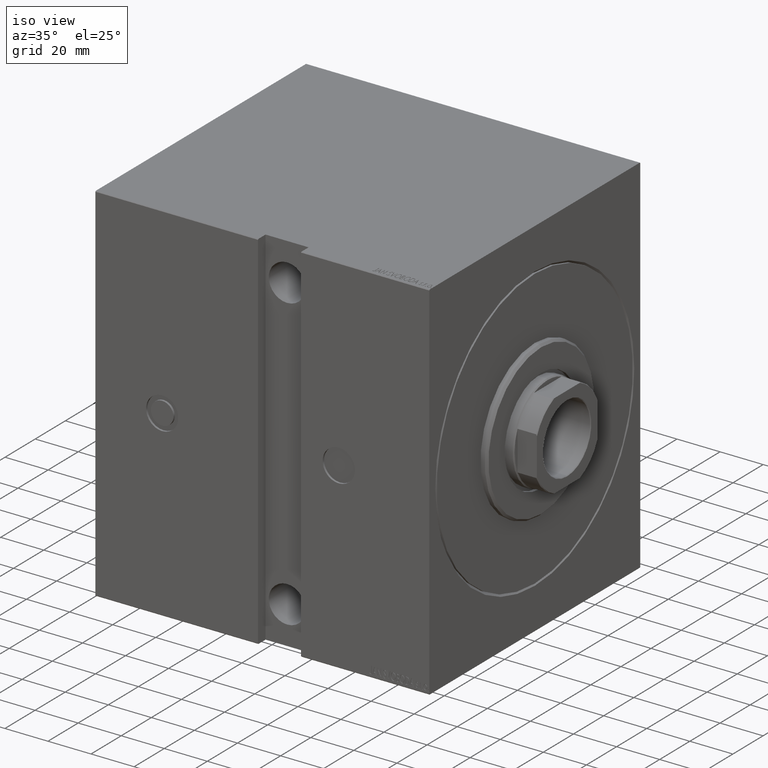
[diagram: clean part render]
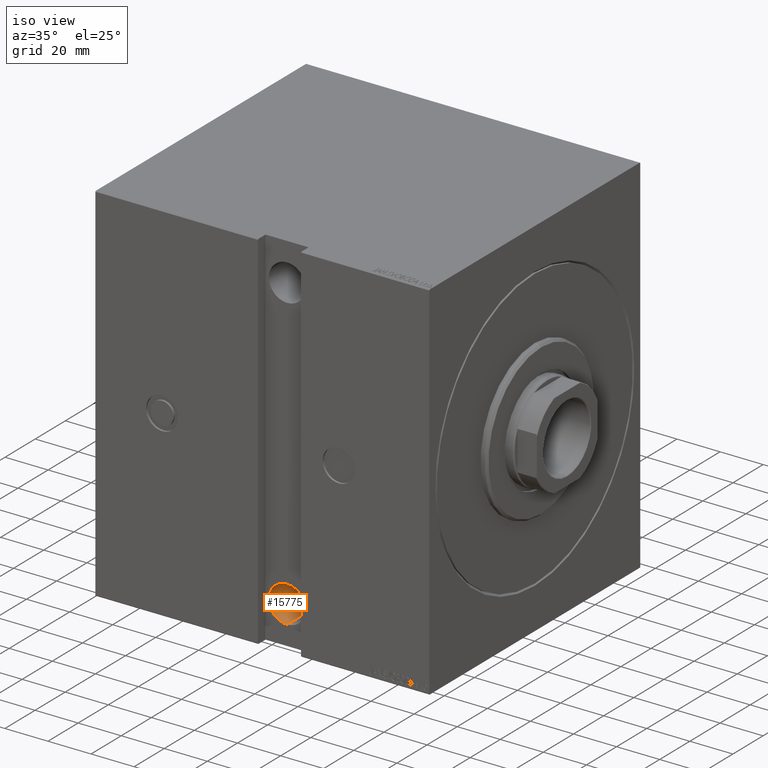
[diagram: same view with one face highlighted and labeled with its STEP entity id]
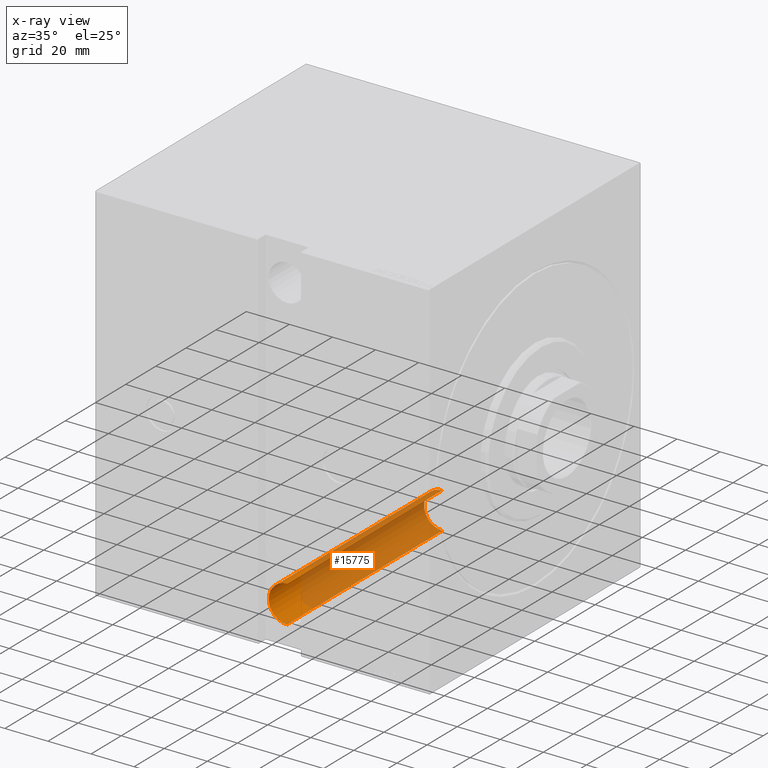
[diagram: x-ray of the same camera — body ghosted, the highlighted face saturated]
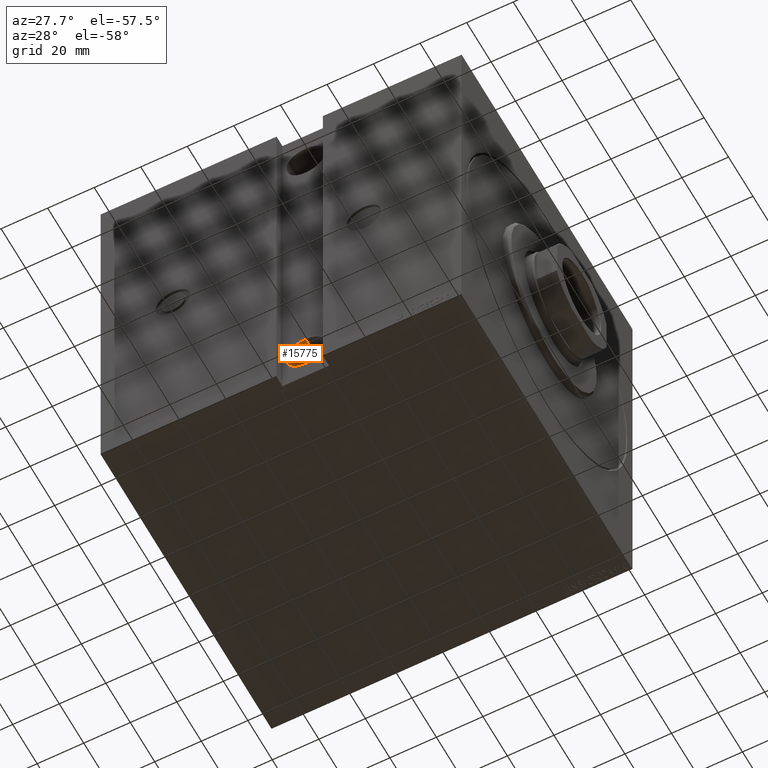
[diagram: same view with one face highlighted and labeled with its STEP entity id]
A machine part, iso view. The second image highlights one B-rep face of the part: STEP entity #15775.
The next image is the same camera in x-ray: the body ghosted, the highlighted face saturated — about 81% of this face is hidden behind the body in this view.
A second angle (auxiliary view) of the same face is appended — the face is thin or edge-on in the first view.
In plain terms, the highlighted cylindrical surface (edge-blend (fillet) strip) has radius 8.5 mm, axis along (0, -1, 0).
Its self-contained STEP definition (entity closure, byte-faithful):
#3386 = DIRECTION ( 'NONE',  ( 0.000000000000000000, 0.000000000000000000, 1.000000000000000000 ) ) ;
#3648 = ORIENTED_EDGE ( 'NONE', *, *, #33974, .F. ) ;
#5653 = CARTESIAN_POINT ( 'NONE',  ( 69.50000000000002842, -38.00000000000000711, -58.99999999999999289 ) ) ;
#6016 = FACE_OUTER_BOUND ( 'NONE', #35700, .T. ) ;
#6874 = EDGE_CURVE ( 'NONE', #28646, #34043, #24178, .T. ) ;
#7125 = ORIENTED_EDGE ( 'NONE', *, *, #41594, .F. ) ;
#7132 = DIRECTION ( 'NONE',  ( 0.000000000000000000, 0.000000000000000000, -1.000000000000000000 ) ) ;
#7747 = VECTOR ( 'NONE', #23974, 1000.000000000000000 ) ;
#8032 = DIRECTION ( 'NONE',  ( 0.000000000000000000, -1.000000000000000000, 0.000000000000000000 ) ) ;
#8603 = LINE ( 'NONE', #34398, #11137 ) ;
#9251 = DIRECTION ( 'NONE',  ( -0.000000000000000000, 1.000000000000000000, -0.000000000000000000 ) ) ;
#10166 = CARTESIAN_POINT ( 'NONE',  ( 69.50000000000002842, -38.00000000000000711, -67.50000000000000000 ) ) ;
#11137 = VECTOR ( 'NONE', #14839, 1000.000000000000000 ) ;
#12708 = ORIENTED_EDGE ( 'NONE', *, *, #6874, .T. ) ;
#13747 = VERTEX_POINT ( 'NONE', #33187 ) ;
#14839 = DIRECTION ( 'NONE',  ( -0.000000000000000000, 1.000000000000000000, -0.000000000000000000 ) ) ;
#15775 = ADVANCED_FACE ( 'NONE', ( #6016 ), #38945, .F. ) ;
#16537 = CARTESIAN_POINT ( 'NONE',  ( 69.50000000000002842, -70.00000000000008527, -67.50000000000000000 ) ) ;
#17540 = CARTESIAN_POINT ( 'NONE',  ( 69.50000000000002842, -70.00000000000008527, -58.99999999999999289 ) ) ;
#23974 = DIRECTION ( 'NONE',  ( -0.000000000000000000, 1.000000000000000000, -0.000000000000000000 ) ) ;
#24178 = LINE ( 'NONE', #17540, #7747 ) ;
#25749 = CIRCLE ( 'NONE', #38868, 8.500000000000007105 ) ;
#28646 = VERTEX_POINT ( 'NONE', #5653 ) ;
#31242 = CARTESIAN_POINT ( 'NONE',  ( 69.50000000000002842, 65.00000000000002842, -67.50000000000000000 ) ) ;
#33187 = CARTESIAN_POINT ( 'NONE',  ( 69.50000000000002842, 65.00000000000002842, -76.00000000000001421 ) ) ;
#33974 = EDGE_CURVE ( 'NONE', #39495, #13747, #8603, .T. ) ;
#34043 = VERTEX_POINT ( 'NONE', #35061 ) ;
#34057 = DIRECTION ( 'NONE',  ( 0.000000000000000000, 0.000000000000000000, -1.000000000000000000 ) ) ;
#34398 = CARTESIAN_POINT ( 'NONE',  ( 69.50000000000002842, -70.00000000000008527, -76.00000000000001421 ) ) ;
#35011 = ORIENTED_EDGE ( 'NONE', *, *, #41828, .F. ) ;
#35061 = CARTESIAN_POINT ( 'NONE',  ( 69.50000000000002842, 65.00000000000002842, -58.99999999999999289 ) ) ;
#35700 = EDGE_LOOP ( 'NONE', ( #3648, #35011, #12708, #7125 ) ) ;
#36409 = DIRECTION ( 'NONE',  ( -0.000000000000000000, 1.000000000000000000, -1.963837897332234442E-16 ) ) ;
#37459 = AXIS2_PLACEMENT_3D ( 'NONE', #10166, #36409, #7132 ) ;
#38315 = CARTESIAN_POINT ( 'NONE',  ( 69.50000000000002842, -38.00000000000000711, -76.00000000000001421 ) ) ;
#38868 = AXIS2_PLACEMENT_3D ( 'NONE', #31242, #8032, #34057 ) ;
#38945 = CYLINDRICAL_SURFACE ( 'NONE', #39608, 8.500000000000014211 ) ;
#39495 = VERTEX_POINT ( 'NONE', #38315 ) ;
#39547 = CIRCLE ( 'NONE', #37459, 8.500000000000007105 ) ;
#39608 = AXIS2_PLACEMENT_3D ( 'NONE', #16537, #9251, #3386 ) ;
#41594 = EDGE_CURVE ( 'NONE', #13747, #34043, #25749, .T. ) ;
#41828 = EDGE_CURVE ( 'NONE', #28646, #39495, #39547, .T. ) ;